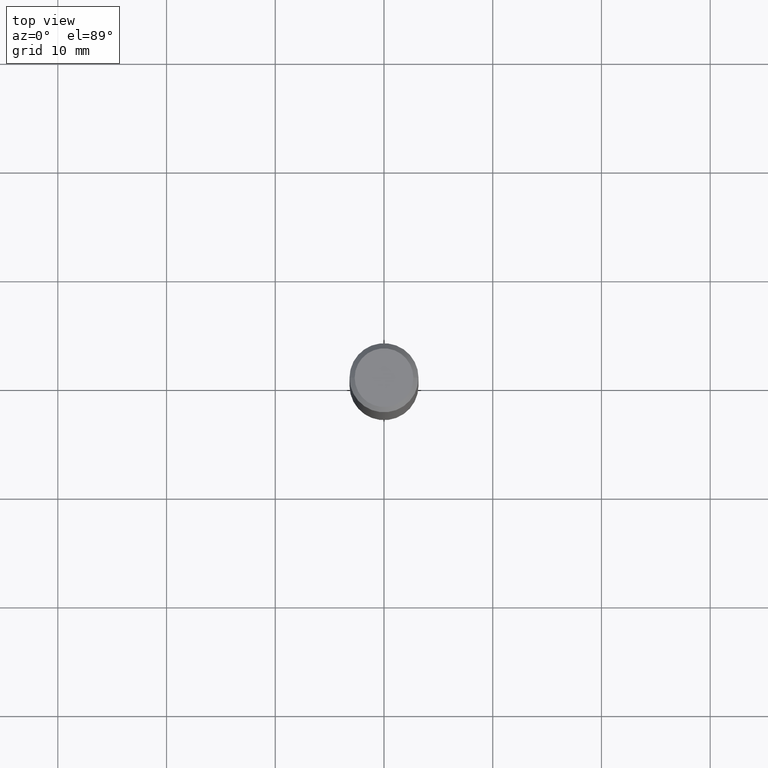
[diagram: clean part render]
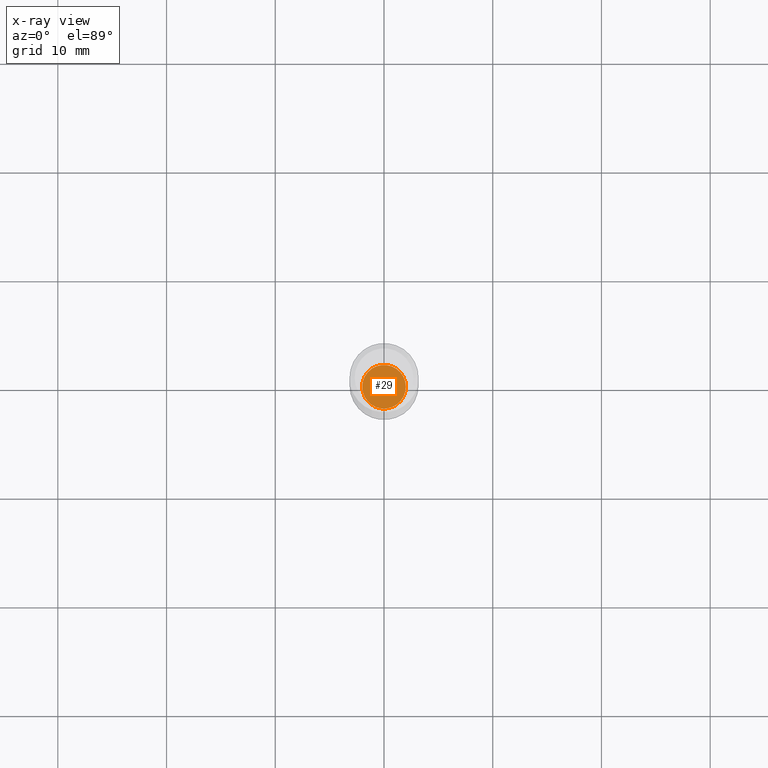
[diagram: x-ray — body ghosted, one internal face saturated and labeled with its STEP entity id]
A machine part, top view, then the same camera in x-ray: the body is ghosted and one INTERNAL B-rep face — a face not visible from any outside direction — is saturated and labeled: STEP entity #29.
In plain terms, the highlighted planar face has unit normal (-0, 0, 1).
Its self-contained STEP definition (entity closure, byte-faithful):
#28 = PLANE ( 'NONE',  #154 ) ;
#29 = ADVANCED_FACE ( 'NONE', ( #76 ), #28, .F. ) ;
#47 = EDGE_CURVE ( 'NONE', #489, #303, #386, .T. ) ;
#76 = FACE_OUTER_BOUND ( 'NONE', #448, .T. ) ;
#144 = CARTESIAN_POINT ( 'NONE',  ( 4.668399951007425925E-29, -6.665237875851565683E-15, -1.909000000000000030 ) ) ;
#154 = AXIS2_PLACEMENT_3D ( 'NONE', #295, #442, #333 ) ;
#181 = ORIENTED_EDGE ( 'NONE', *, *, #465, .F. ) ;
#182 = CARTESIAN_POINT ( 'NONE',  ( 4.668399951007425925E-29, -6.665237875851565683E-15, -1.909000000000000030 ) ) ;
#188 = AXIS2_PLACEMENT_3D ( 'NONE', #182, #481, #224 ) ;
#217 = CARTESIAN_POINT ( 'NONE',  ( -0.07900000000000000078, -6.101259887426974836E-15, -1.909000000000000030 ) ) ;
#224 = DIRECTION ( 'NONE',  ( 1.000000000000000000, -6.982962677686271444E-15, 0.000000000000000000 ) ) ;
#295 = CARTESIAN_POINT ( 'NONE',  ( 4.668399951007425925E-29, -6.665237875851565683E-15, -1.909000000000000030 ) ) ;
#299 = DIRECTION ( 'NONE',  ( -2.445468806185136597E-29, 3.491481338843145583E-15, 1.000000000000000000 ) ) ;
#303 = VERTEX_POINT ( 'NONE', #316 ) ;
#316 = CARTESIAN_POINT ( 'NONE',  ( 0.07900000000000000078, -7.216891927388781321E-15, -1.909000000000000030 ) ) ;
#333 = DIRECTION ( 'NONE',  ( 1.000000000000000000, -6.982962677686265922E-15, 4.876176775795935793E-29 ) ) ;
#386 = CIRCLE ( 'NONE', #435, 0.07900000000000000078 ) ;
#404 = CIRCLE ( 'NONE', #188, 0.07900000000000000078 ) ;
#435 = AXIS2_PLACEMENT_3D ( 'NONE', #144, #299, #445 ) ;
#441 = ORIENTED_EDGE ( 'NONE', *, *, #47, .F. ) ;
#442 = DIRECTION ( 'NONE',  ( -2.438088387897960049E-29, 3.491481338843145188E-15, 1.000000000000000000 ) ) ;
#445 = DIRECTION ( 'NONE',  ( 1.000000000000000000, -6.982962677686271444E-15, 0.000000000000000000 ) ) ;
#448 = EDGE_LOOP ( 'NONE', ( #181, #441 ) ) ;
#465 = EDGE_CURVE ( 'NONE', #303, #489, #404, .T. ) ;
#481 = DIRECTION ( 'NONE',  ( -2.445468806185136597E-29, 3.491481338843145583E-15, 1.000000000000000000 ) ) ;
#489 = VERTEX_POINT ( 'NONE', #217 ) ;